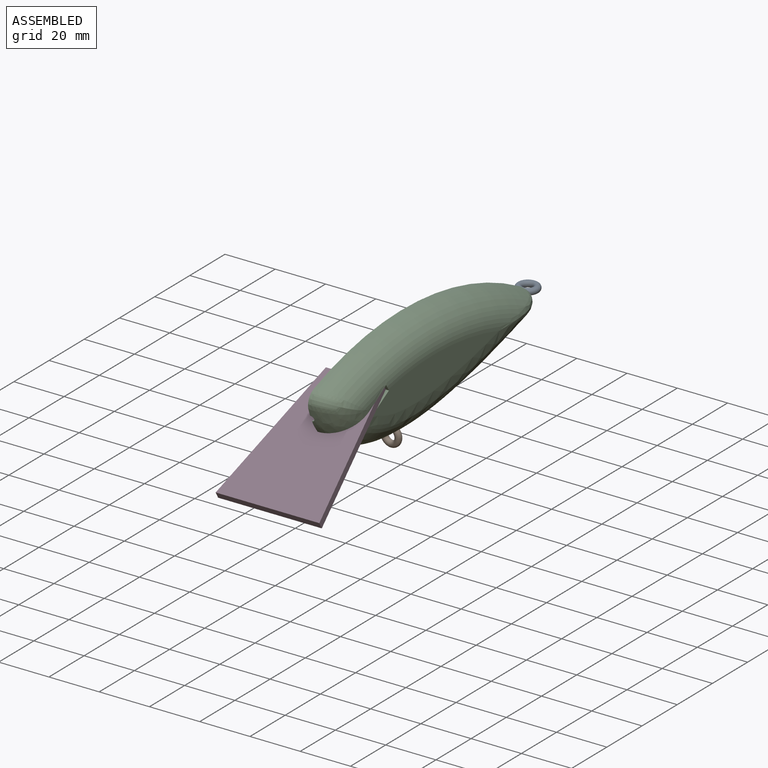
[diagram: assembled view]
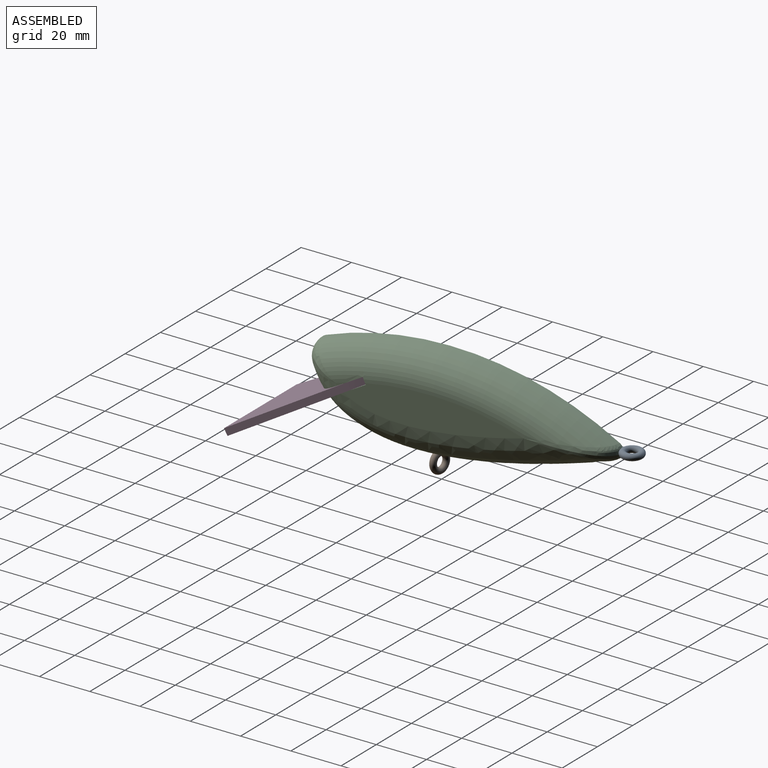
[diagram: assembled view, second angle]
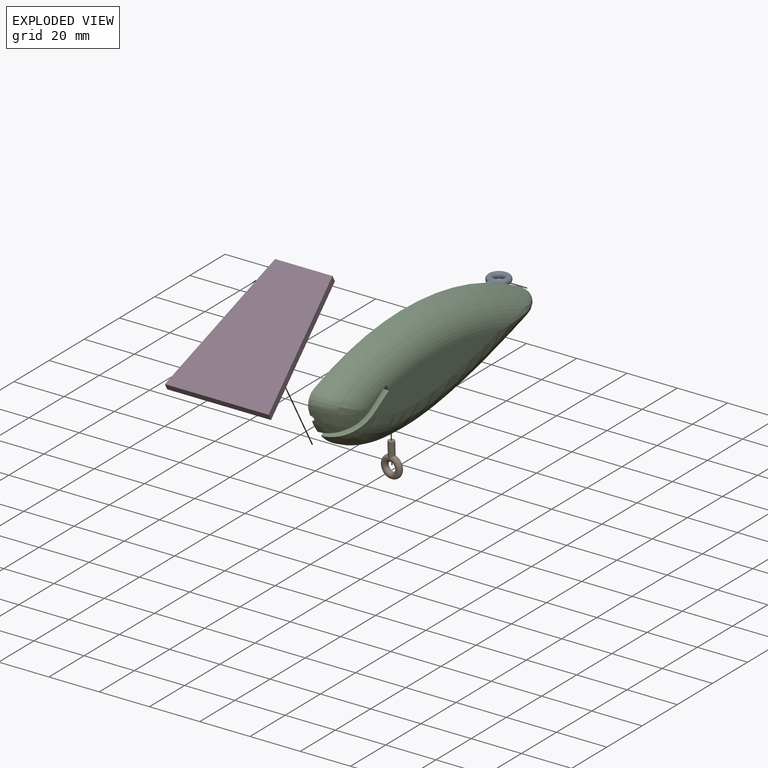
[diagram: exploded view]
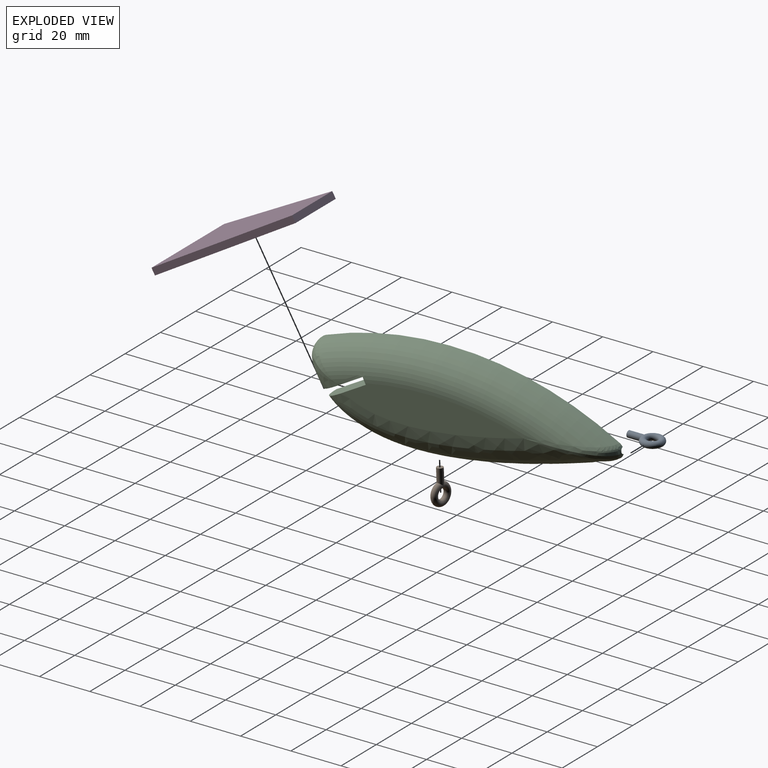
[diagram: exploded view, second angle]
ASSEMBLY  parts=4 mates=3
PART A: 3 faces, bbox 14.3x2.5x9.6 mm
  f0: cylinder r=1.27mm len=6.35mm, axis (-1,0,0), area 45mm2, adj f1,f2
  f1: plane 2.54x2.54mm, normal (1,0,0), area 5.1mm2, adj f0
  f2: torus R=3.17mm, axis (0,-1,0), area 152.7mm2, adj f0
PART B: same geometry as A
PART C: 24 faces, bbox 16.6x128.5x51.4 mm
  f0: cylinder r=1.22mm len=101.81mm, axis (0,1,0), area 380mm2, adj f3,f7,f10,f14,f15,f17
  f1: torus R=127mm, axis (1,0,0), area 2088.8mm2, adj f2,f4,f10,f11,f12,f13,f17
  f2: plane 21.88x13.59mm, normal (0,0.5,-0.87), area 267.7mm2, adj f1,f4,f5,f9,f12,f16,f17
  f3: plane 21.4x13.59mm, normal (0,-0.5,0.87), area 260.1mm2, adj f0,f4,f8,f11,f14,f17
  f4: plane 12.71x2.41mm, normal (0,-0.87,-0.5), area 35.2mm2, adj f1,f2,f3,f11,f17
  f5: cylinder r=1.22mm len=17.24mm, axis (0,1,0), area 55.8mm2, adj f2,f9,f16,f17
  f6: plane 0.07x0.03mm, normal (0,-0.04,1), area 0mm2, adj f7,f8
  f7: cylinder r=1.22mm len=18.62mm, axis (0,0.04,-1), area 51.2mm2, adj f0,f6,f8,f14,f15
  f8: bspline ~119.7x30.17mm, area 2029.1mm2, adj f3,f6,f7,f10,f11,f14,f15
  f9: bspline ~20.16x18.46mm, area 147.2mm2, adj f2,f5,f12,f13,f16,f17
  f10: bspline ~35.7x13.46mm, area 129.2mm2, adj f0,f1,f8,f15,f17
  f11: plane 71.71x13.58mm, normal (1,0,0), area 655.7mm2, adj f1,f3,f4,f8
  f12: plane 4.18x1.99mm, normal (1,0,0), area 2.1mm2, adj f1,f2,f9
  f13: bspline ~17.15x15.72mm, area 75.8mm2, adj f1,f9,f17
  f14: plane 39.41x18.44mm, normal (-1,0,0), area 536.1mm2, adj f0,f3,f7,f8,f23
  f15: plane 73.58x18.52mm, normal (-1,0,0), area 810.1mm2, adj f0,f7,f8,f10,f21
  f16: plane 11.93x5.06mm, normal (-1,0,0), area 30.6mm2, adj f2,f5,f9
  f17: plane 121.34x18.25mm, normal (-1,0,0), area 1566.5mm2, adj f0,f1,f2,f3,f4,f5,f9,f10
  f18: cone r=0mm half-angle=59deg, axis (-1,0,0), area 36.9mm2, adj f19
  f19: cylinder r=3.17mm len=6.35mm, axis (-1,0,0), area 126.7mm2, adj f17,f18
  f20: cone r=0mm half-angle=59deg, axis (-1,0,0), area 36.9mm2, adj f21
  f21: cylinder r=3.17mm len=6.35mm, axis (-1,0,0), area 126.7mm2, adj f15,f20
  f22: cone r=0mm half-angle=59deg, axis (-1,0,0), area 36.9mm2, adj f23
  f23: cylinder r=3.17mm len=6.35mm, axis (-1,0,0), area 126.7mm2, adj f14,f22
PART D: 6 faces, bbox 41.3x57.2x2.8 mm
  f0: plane 41.28x2.78mm, normal (0,1,0), area 114.7mm2, adj f1,f3,f4,f5
  f1: plane 57.15x9.21mm, normal (-0.99,-0.16,0), area 160.9mm2, adj f0,f2,f4,f5
  f2: plane 22.86x2.78mm, normal (0,-1,0), area 63.5mm2, adj f1,f3,f4,f5
  f3: plane 57.15x9.21mm, normal (0.99,-0.16,0), area 160.9mm2, adj f0,f2,f4,f5
  f4: plane 57.15x41.28mm, normal (0,0,1), area 1832.7mm2, adj f0,f1,f2,f3
  f5: plane 57.15x41.28mm, normal (0,0,-1), area 1832.7mm2, adj f0,f1,f2,f3
PLACE A rot(axis=(0.58,-0.58,-0.58),120deg) t=(-0.08,60.59,8.56)mm
PLACE B rot(axis=(0.71,-0.06,0.7),176.3deg) t=(-0.59,-13.32,-12)mm
PLACE C t=(-12.78,-62.1,16.94)mm fixed
PLACE D rot(axis=(-1,0,0),150deg) t=(-20.71,-84.23,-14.14)mm
MATE cylindrical C.f7 <-> B.f0  axis (0,0.04,-1) through (-0.59,-13.36,-10.96)mm
MATE planar D.f4 <-> C.f3  axis (0,0.5,-0.87) through (-0.08,-60.46,-3.63)mm
MATE planar C.f4 <-> D.f2  axis (0,-0.87,-0.5) through (6.25,-34.04,13.23)mm
